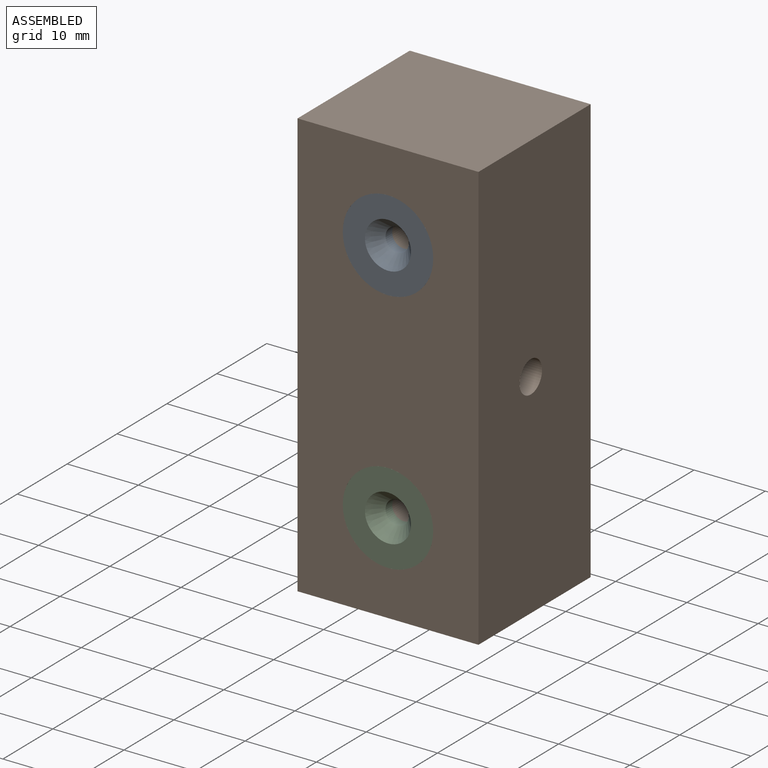
[diagram: assembled view]
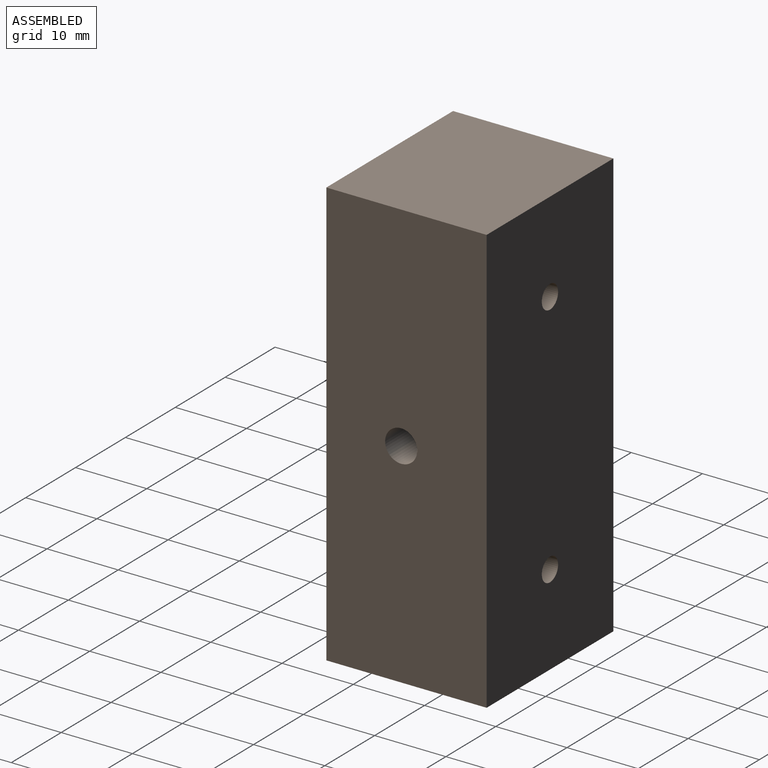
[diagram: assembled view, second angle]
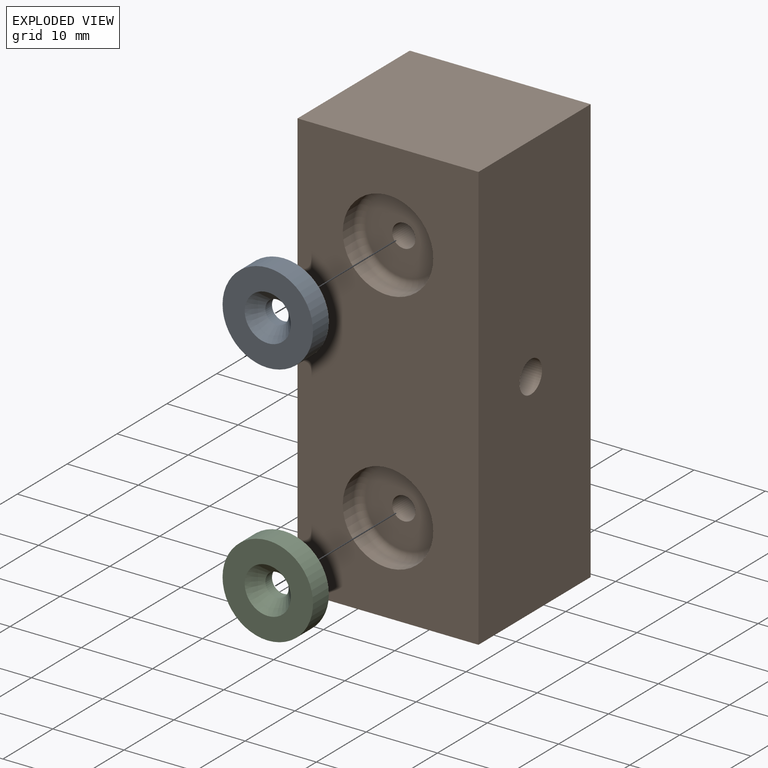
[diagram: exploded view]
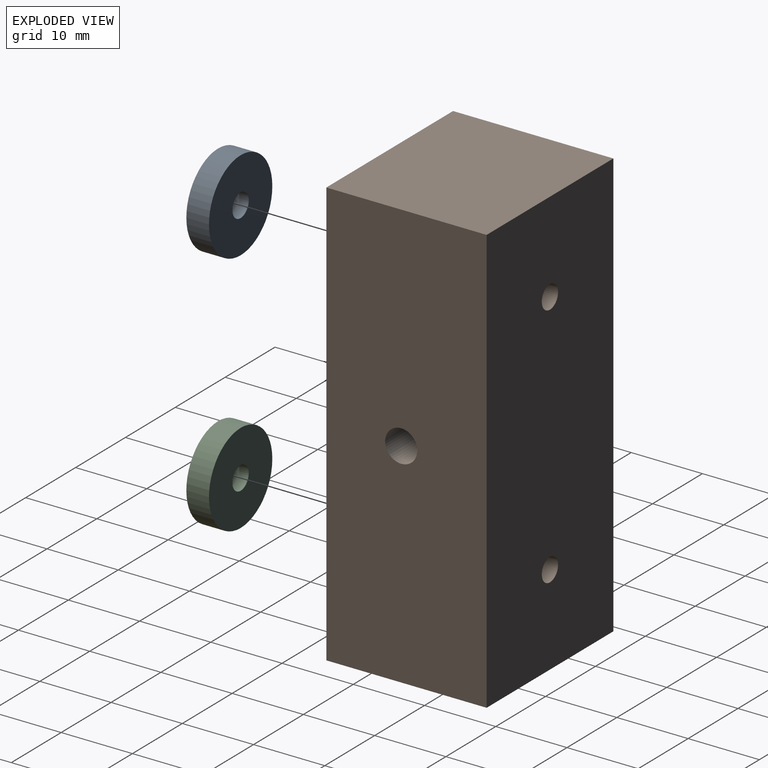
[diagram: exploded view, second angle]
ASSEMBLY  parts=3 mates=4
PART A: 5 faces, bbox 12.7x3.2x12.7 mm
  f0: cylinder r=6.35mm len=12.7mm, axis (0,1,0), area 126.7mm2, adj f1,f2
  f1: plane 12.7x12.7mm, normal (0,-1,0), area 118.3mm2, adj f0,f3
  f2: plane 12.7x12.7mm, normal (0,1,0), area 93.7mm2, adj f0,f4
  f3: cylinder r=1.63mm len=3.26mm, axis (0,1,0), area 13.6mm2, adj f1,f4
  f4: cone r=1.63mm half-angle=41deg, axis (0,1,0), area 37.5mm2, adj f2,f3
PART B: 17 faces, bbox 22.5x60x25.4 mm
  f0: plane 60x22.5mm, normal (0,0,1), area 1296.5mm2, adj f2,f3,f4,f7,f12
  f1: plane 60x22.5mm, normal (0,0,-1), area 1334.1mm2, adj f2,f3,f4,f5,f12
  f2: plane 60x25.4mm, normal (1,0,0), area 1270.6mm2, adj f0,f1,f3,f4,f8,f10
  f3: plane 25.4x22.5mm, normal (0,-1,0), area 571.5mm2, adj f0,f1,f2,f12
  f4: plane 25.4x22.5mm, normal (0,1,0), area 571.5mm2, adj f0,f1,f2,f12
  f5: cylinder r=2.25mm len=21.4mm, axis (0,0,1), area 302.5mm2, adj f1,f6
  f6: plane 8.25x8.25mm, normal (0,0,1), area 37.6mm2, adj f5,f7
  f7: cylinder r=4.12mm len=8.25mm, axis (0,0,1), area 103.7mm2, adj f0,f6
  f8: cylinder r=6.35mm len=12.7mm, axis (1,0,0), area 86.8mm2, adj f2,f15
  f9: plane 10.7x10.7mm, normal (1,0,0), area 81.6mm2, adj f13,f15
  f10: cylinder r=6.35mm len=12.7mm, axis (1,0,0), area 86.8mm2, adj f2,f16
  f11: plane 10.7x10.7mm, normal (1,0,0), area 81.6mm2, adj f14,f16
  f12: plane 60x25.4mm, normal (-1,0,0), area 1507.3mm2, adj f0,f1,f3,f4,f13,f14
  f13: cylinder r=1.63mm len=19.33mm, axis (1,0,0), area 198.2mm2, adj f9,f12
  f14: cylinder r=1.63mm len=19.33mm, axis (1,0,0), area 198.2mm2, adj f11,f12
  f15: torus R=5.35mm, axis (1,0,0), area 59.1mm2, adj f8,f9
  f16: torus R=5.35mm, axis (1,0,0), area 59.1mm2, adj f10,f11
PART C: same geometry as A
PLACE A rot(axis=(0,0,1),180deg) t=(-44.45,-45,17.3)mm
PLACE B rot(axis=(0.58,-0.58,-0.58),120deg) t=(-20.85,-25.31,30)mm
PLACE C rot(axis=(0,0,1),180deg) t=(-44.45,-45,-17.3)mm
MATE cylindrical A.f0 <-> B.f8  axis (0,-1,0) through (-44.45,-43.41,17.3)mm
MATE planar A.f0 <-> B.f8  axis (0,1,0) through (-44.45,-41.83,17.3)mm
MATE cylindrical C.f0 <-> B.f10  axis (0,-1,0) through (-44.45,-43.41,-17.3)mm
MATE planar C.f0 <-> B.f10  axis (0,1,0) through (-44.45,-41.83,-17.3)mm
